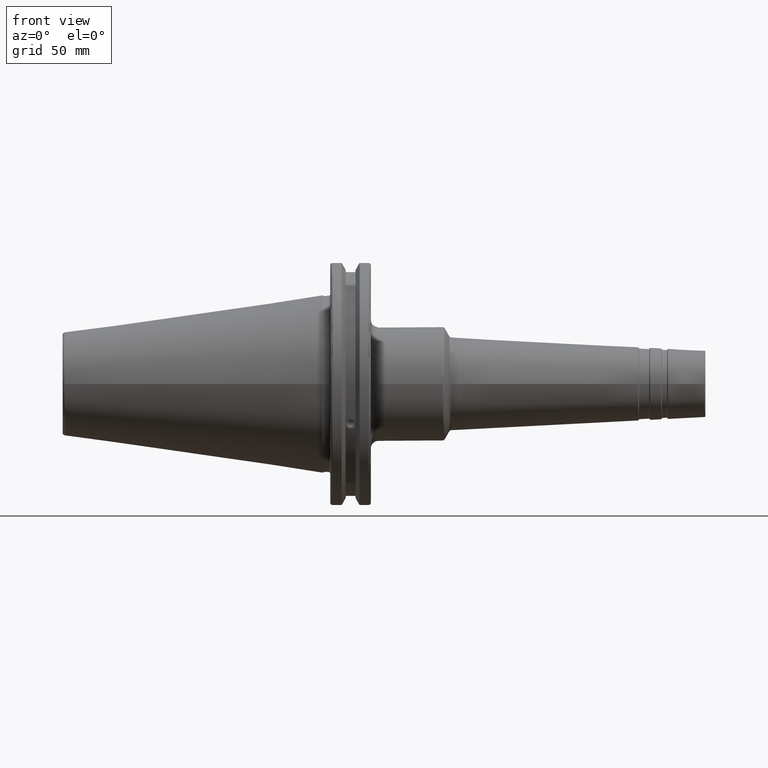
[diagram: clean part render]
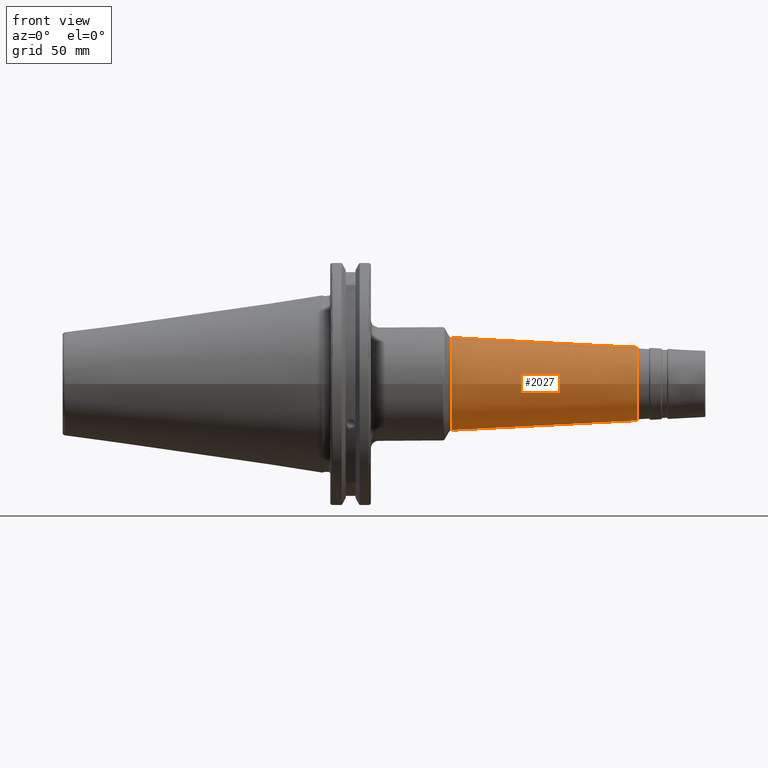
[diagram: same view with one face highlighted and labeled with its STEP entity id]
A machine part, front view. The second image highlights one B-rep face of the part: STEP entity #2027.
In plain terms, the highlighted conical surface has half-angle 3 deg.
Its self-contained STEP definition (entity closure, byte-faithful):
#72=CONICAL_SURFACE('',#2173,16.3081634099065,0.0523598775598299);
#162=LINE('',#3158,#263);
#263=VECTOR('',#2499,16.3081634099065);
#385=FACE_OUTER_BOUND('',#490,.T.);
#490=EDGE_LOOP('',(#1398,#1399,#1400,#1401,#1402,#1403,#1404,#1405));
#626=CIRCLE('',#2170,18.212361822566);
#627=CIRCLE('',#2171,18.212361822566);
#628=CIRCLE('',#2172,18.212361822566);
#629=CIRCLE('',#2174,14.387635362879);
#630=CIRCLE('',#2175,14.387635362879);
#631=CIRCLE('',#2176,14.387635362879);
#805=VERTEX_POINT('',#3145);
#806=VERTEX_POINT('',#3147);
#807=VERTEX_POINT('',#3149);
#808=VERTEX_POINT('',#3153);
#809=VERTEX_POINT('',#3154);
#810=VERTEX_POINT('',#3156);
#1047=EDGE_CURVE('',#805,#806,#626,.T.);
#1048=EDGE_CURVE('',#806,#807,#627,.T.);
#1049=EDGE_CURVE('',#807,#805,#628,.T.);
#1050=EDGE_CURVE('',#808,#809,#629,.T.);
#1051=EDGE_CURVE('',#810,#808,#630,.T.);
#1052=EDGE_CURVE('',#810,#807,#162,.T.);
#1053=EDGE_CURVE('',#809,#810,#631,.T.);
#1398=ORIENTED_EDGE('',*,*,#1050,.F.);
#1399=ORIENTED_EDGE('',*,*,#1051,.F.);
#1400=ORIENTED_EDGE('',*,*,#1052,.T.);
#1401=ORIENTED_EDGE('',*,*,#1048,.F.);
#1402=ORIENTED_EDGE('',*,*,#1047,.F.);
#1403=ORIENTED_EDGE('',*,*,#1049,.F.);
#1404=ORIENTED_EDGE('',*,*,#1052,.F.);
#1405=ORIENTED_EDGE('',*,*,#1053,.F.);
#2027=ADVANCED_FACE('',(#385),#72,.T.);
#2170=AXIS2_PLACEMENT_3D('',#3148,#2487,#2488);
#2171=AXIS2_PLACEMENT_3D('',#3150,#2489,#2490);
#2172=AXIS2_PLACEMENT_3D('',#3151,#2491,#2492);
#2173=AXIS2_PLACEMENT_3D('',#3152,#2493,#2494);
#2174=AXIS2_PLACEMENT_3D('',#3155,#2495,#2496);
#2175=AXIS2_PLACEMENT_3D('',#3157,#2497,#2498);
#2176=AXIS2_PLACEMENT_3D('',#3159,#2500,#2501);
#2487=DIRECTION('center_axis',(-1.,0.,0.));
#2488=DIRECTION('ref_axis',(0.,-1.,3.06161699786838E-17));
#2489=DIRECTION('center_axis',(-1.,0.,0.));
#2490=DIRECTION('ref_axis',(0.,-1.,3.06161699786838E-17));
#2491=DIRECTION('center_axis',(-1.,0.,0.));
#2492=DIRECTION('ref_axis',(0.,-1.,3.06161699786838E-17));
#2493=DIRECTION('center_axis',(-1.,0.,0.));
#2494=DIRECTION('ref_axis',(0.,1.,0.));
#2495=DIRECTION('center_axis',(1.,0.,0.));
#2496=DIRECTION('ref_axis',(0.,-1.,3.06161699786838E-17));
#2497=DIRECTION('center_axis',(1.,0.,0.));
#2498=DIRECTION('ref_axis',(0.,-1.,3.06161699786838E-17));
#2499=DIRECTION('',(-0.998629534754574,-0.0523359562429439,-6.40930612932372E-18));
#2500=DIRECTION('center_axis',(1.,0.,0.));
#2501=DIRECTION('ref_axis',(0.,-1.,3.06161699786838E-17));
#3145=CARTESIAN_POINT('',(50.5422115977223,-2.23037106109189E-15,18.212361822566));
#3147=CARTESIAN_POINT('',(50.5422115977223,18.212361822566,-5.57592765272972E-15));
#3148=CARTESIAN_POINT('Origin',(50.5422115977223,0.,-2.78796382636486E-15));
#3149=CARTESIAN_POINT('',(50.5422115977223,-18.212361822566,-2.23037106109189E-15));
#3150=CARTESIAN_POINT('Origin',(50.5422115977223,0.,-2.78796382636486E-15));
#3151=CARTESIAN_POINT('Origin',(50.5422115977223,0.,-2.78796382636486E-15));
#3152=CARTESIAN_POINT('Origin',(86.8764817902327,0.,0.));
#3153=CARTESIAN_POINT('',(123.522339968181,14.387635362879,-8.80988579722449E-16));
#3154=CARTESIAN_POINT('',(123.522339968181,-1.7619771594449E-15,14.387635362879));
#3155=CARTESIAN_POINT('Origin',(123.522339968181,0.,-2.20247144930612E-15));
#3156=CARTESIAN_POINT('',(123.522339968181,-14.387635362879,-1.7619771594449E-15));
#3157=CARTESIAN_POINT('Origin',(123.522339968181,0.,-2.20247144930612E-15));
#3158=CARTESIAN_POINT('',(86.8764817902327,-16.3081634099065,-1.9971740119914E-15));
#3159=CARTESIAN_POINT('Origin',(123.522339968181,0.,-2.20247144930612E-15));